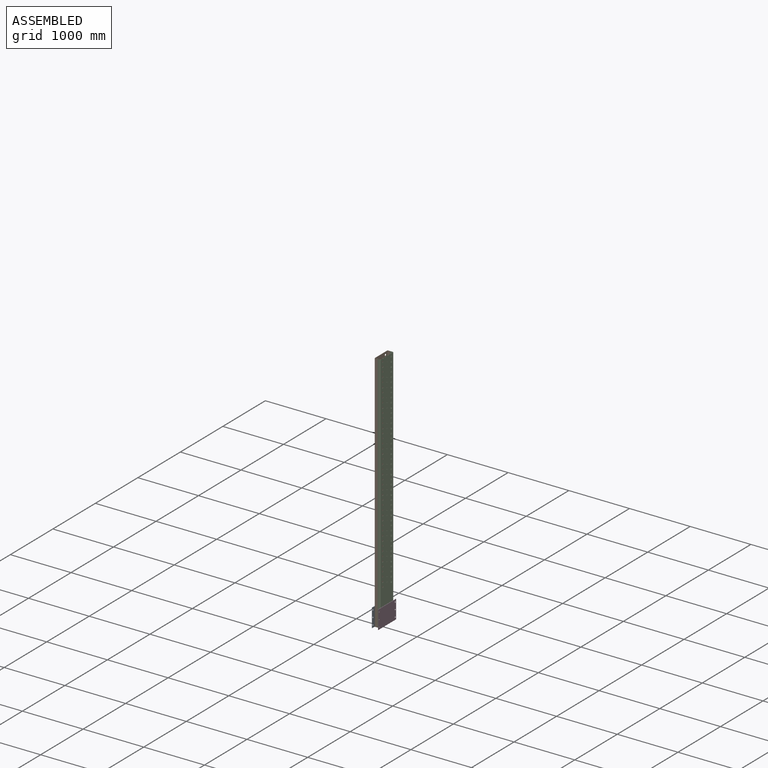
[diagram: assembled view]
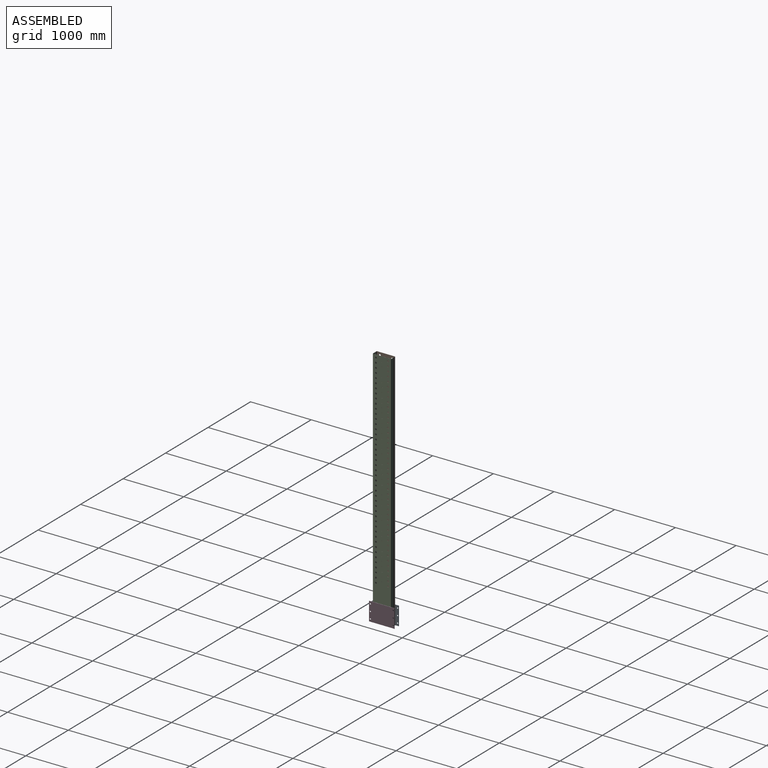
[diagram: assembled view, second angle]
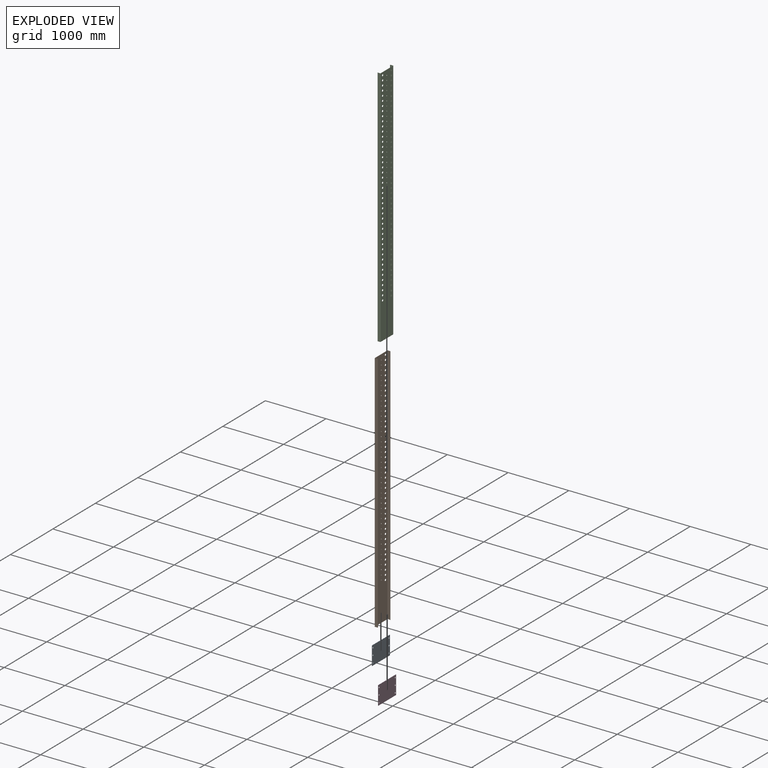
[diagram: exploded view]
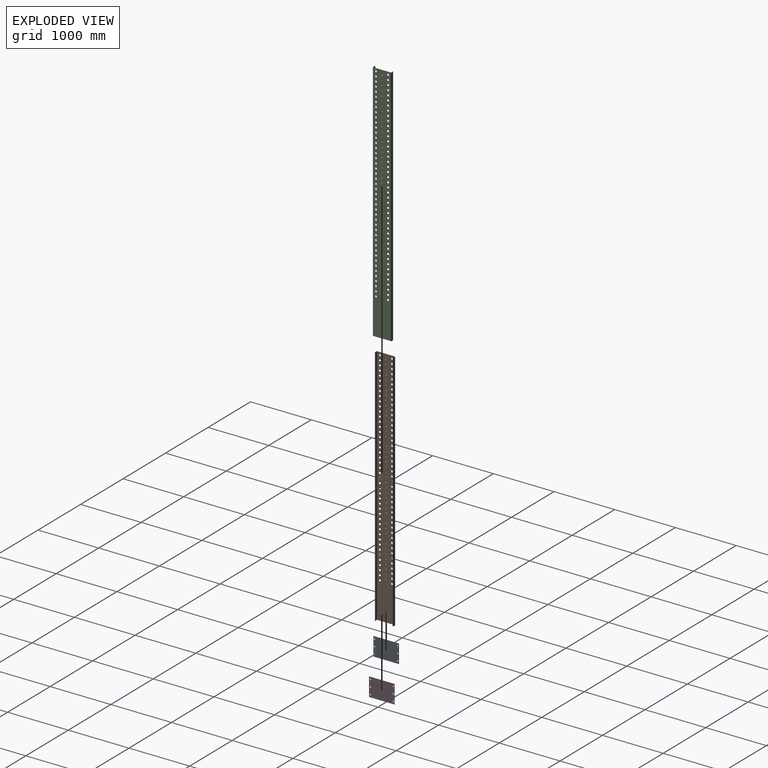
[diagram: exploded view, second angle]
ASSEMBLY  parts=4 mates=3
PART A: 12 faces, bbox 6x419x305 mm
  f0: plane 419x305mm, normal (-1,0,0), area 125716.8mm2, adj f1,f3,f4,f5,f6,f7,f8,f9
  f1: plane 305x6mm, normal (0,-1,0), area 1830mm2, adj f0,f2,f4,f5
  f2: plane 419x305mm, normal (1,0,0), area 125716.8mm2, adj f1,f3,f4,f5,f6,f7,f8,f9
  f3: plane 305x6mm, normal (0,1,0), area 1830mm2, adj f0,f2,f4,f5
  f4: plane 419x6mm, normal (0,0,1), area 2514mm2, adj f0,f1,f2,f3
  f5: plane 419x6mm, normal (0,0,-1), area 2514mm2, adj f0,f1,f2,f3
  f6: cylinder r=10.5mm len=21mm, axis (-1,0,0), area 395.8mm2, adj f0,f2
  f7: cylinder r=10.5mm len=21mm, axis (-1,0,0), area 395.8mm2, adj f0,f2
  f8: cylinder r=10.5mm len=21mm, axis (-1,0,0), area 395.8mm2, adj f0,f2
  f9: cylinder r=10.5mm len=21mm, axis (-1,0,0), area 395.8mm2, adj f0,f2
  f10: cylinder r=10.5mm len=21mm, axis (-1,0,0), area 395.8mm2, adj f0,f2
  f11: cylinder r=10.5mm len=21mm, axis (-1,0,0), area 395.8mm2, adj f0,f2
PART B: 156 faces, bbox 48x305x4000 mm
  f0: cylinder r=3mm len=4000mm, axis (0,0,-1), area 18849.6mm2, adj f1,f19,f20,f21
  f1: plane 4000x5mm, normal (-1,0,0), area 20000mm2, adj f0,f2,f20,f21
  f2: plane 4000x2mm, normal (0,-1,0), area 8000mm2, adj f1,f3,f20,f21
  f3: plane 4000x5mm, normal (1,0,0), area 20000mm2, adj f2,f4,f20,f21
  f4: cylinder r=5mm len=4000mm, axis (0,0,-1), area 31415.9mm2, adj f3,f5,f20,f21
  f5: plane 4000x38mm, normal (0,1,0), area 152000mm2, adj f4,f6,f20,f21
  f6: cylinder r=5mm len=4000mm, axis (0,0,-1), area 31415.9mm2, adj f5,f7,f20,f21
  f7: plane 4000x295mm, normal (-1,0,0), area 1112201.3mm2, adj f6,f8,f20,f21,f22,f23,f24,f25
  f8: cylinder r=5mm len=4000mm, axis (0,0,-1), area 31415.9mm2, adj f7,f9,f20,f21
  f9: plane 4000x38mm, normal (0,-1,0), area 152000mm2, adj f8,f10,f20,f21
  f10: cylinder r=5mm len=4000mm, axis (0,0,-1), area 31415.9mm2, adj f9,f11,f20,f21
  f11: plane 4000x5mm, normal (1,0,0), area 20000mm2, adj f10,f12,f20,f21
  f12: plane 4000x2mm, normal (0,1,0), area 8000mm2, adj f11,f13,f20,f21
  f13: plane 4000x5mm, normal (-1,0,0), area 20000mm2, adj f12,f14,f20,f21
  f14: cylinder r=3mm len=4000mm, axis (0,0,-1), area 18849.6mm2, adj f13,f15,f20,f21
  f15: plane 4000x38mm, normal (0,1,0), area 152000mm2, adj f14,f16,f20,f21
  f16: cylinder r=3mm len=4000mm, axis (0,0,-1), area 18849.6mm2, adj f15,f17,f20,f21
  f17: plane 4000x295mm, normal (1,0,0), area 1112201.3mm2, adj f16,f18,f20,f21,f22,f23,f24,f25
  f18: cylinder r=3mm len=4000mm, axis (0,0,-1), area 18849.6mm2, adj f17,f19,f20,f21
  f19: plane 4000x38mm, normal (0,-1,0), area 152000mm2, adj f0,f18,f20,f21
  f20: plane 305x48mm, normal (0,0,1), area 812.3mm2, adj f0,f1,f2,f3,f4,f5,f6,f7
  f21: plane 305x48mm, normal (0,0,-1), area 812.3mm2, adj f0,f1,f2,f3,f4,f5,f6,f7
  f22: cylinder r=15mm len=30mm, axis (-1,0,0), area 188.5mm2, adj f7,f17
  f23: cylinder r=5.5mm len=11mm, axis (-1,0,0), area 69.1mm2, adj f7,f17
  f24: cylinder r=5.5mm len=11mm, axis (-1,0,0), area 69.1mm2, adj f7,f17
  f25: cylinder r=5.5mm len=11mm, axis (-1,0,0), area 69.1mm2, adj f7,f17
  f26: cylinder r=5.5mm len=11mm, axis (-1,0,0), area 69.1mm2, adj f7,f17
  f27: cylinder r=5.5mm len=11mm, axis (-1,0,0), area 69.1mm2, adj f7,f17
  f28: cylinder r=15mm len=30mm, axis (-1,0,0), area 188.5mm2, adj f7,f17
  f29: cylinder r=5.5mm len=11mm, axis (-1,0,0), area 69.1mm2, adj f7,f17
  f30: cylinder r=15mm len=30mm, axis (-1,0,0), area 188.5mm2, adj f7,f17
  f31: cylinder r=15mm len=30mm, axis (-1,0,0), area 188.5mm2, adj f7,f17
  f32: cylinder r=15mm len=30mm, axis (-1,0,0), area 188.5mm2, adj f7,f17
  f33: cylinder r=15mm len=30mm, axis (-1,0,0), area 188.5mm2, adj f7,f17
  f34: cylinder r=15mm len=30mm, axis (-1,0,0), area 188.5mm2, adj f7,f17
  f35: cylinder r=15mm len=30mm, axis (-1,0,0), area 188.5mm2, adj f7,f17
  f36: cylinder r=15mm len=30mm, axis (-1,0,0), area 188.5mm2, adj f7,f17
  f37: cylinder r=15mm len=30mm, axis (-1,0,0), area 188.5mm2, adj f7,f17
  f38: cylinder r=15mm len=30mm, axis (-1,0,0), area 188.5mm2, adj f7,f17
  f39: cylinder r=15mm len=30mm, axis (-1,0,0), area 188.5mm2, adj f7,f17
  f40: cylinder r=15mm len=30mm, axis (-1,0,0), area 188.5mm2, adj f7,f17
  f41: cylinder r=15mm len=30mm, axis (-1,0,0), area 188.5mm2, adj f7,f17
  f42: cylinder r=15mm len=30mm, axis (-1,0,0), area 188.5mm2, adj f7,f17
  f43: cylinder r=15mm len=30mm, axis (-1,0,0), area 188.5mm2, adj f7,f17
  f44: cylinder r=15mm len=30mm, axis (-1,0,0), area 188.5mm2, adj f7,f17
  f45: cylinder r=15mm len=30mm, axis (-1,0,0), area 188.5mm2, adj f7,f17
  f46: cylinder r=15mm len=30mm, axis (-1,0,0), area 188.5mm2, adj f7,f17
  f47: cylinder r=15mm len=30mm, axis (-1,0,0), area 188.5mm2, adj f7,f17
  f48: cylinder r=15mm len=30mm, axis (-1,0,0), area 188.5mm2, adj f7,f17
  f49: cylinder r=15mm len=30mm, axis (-1,0,0), area 188.5mm2, adj f7,f17
  f50: cylinder r=15mm len=30mm, axis (-1,0,0), area 188.5mm2, adj f7,f17
  f51: cylinder r=15mm len=30mm, axis (-1,0,0), area 188.5mm2, adj f7,f17
  f52: cylinder r=15mm len=30mm, axis (-1,0,0), area 188.5mm2, adj f7,f17
  f53: cylinder r=15mm len=30mm, axis (-1,0,0), area 188.5mm2, adj f7,f17
  f54: cylinder r=15mm len=30mm, axis (-1,0,0), area 188.5mm2, adj f7,f17
  f55: cylinder r=15mm len=30mm, axis (-1,0,0), area 188.5mm2, adj f7,f17
  f56: cylinder r=15mm len=30mm, axis (-1,0,0), area 188.5mm2, adj f7,f17
  f57: cylinder r=15mm len=30mm, axis (-1,0,0), area 188.5mm2, adj f7,f17
  f58: cylinder r=15mm len=30mm, axis (-1,0,0), area 188.5mm2, adj f7,f17
  f59: cylinder r=15mm len=30mm, axis (-1,0,0), area 188.5mm2, adj f7,f17
  f60: cylinder r=15mm len=30mm, axis (-1,0,0), area 188.5mm2, adj f7,f17
  f61: cylinder r=15mm len=30mm, axis (-1,0,0), area 188.5mm2, adj f7,f17
  f62: cylinder r=15mm len=30mm, axis (-1,0,0), area 188.5mm2, adj f7,f17
  f63: cylinder r=15mm len=30mm, axis (-1,0,0), area 188.5mm2, adj f7,f17
  f64: cylinder r=15mm len=30mm, axis (-1,0,0), area 188.5mm2, adj f7,f17
  f65: cylinder r=15mm len=30mm, axis (-1,0,0), area 188.5mm2, adj f7,f17
  f66: cylinder r=15mm len=30mm, axis (-1,0,0), area 188.5mm2, adj f7,f17
  f67: cylinder r=15mm len=30mm, axis (-1,0,0), area 188.5mm2, adj f7,f17
  f68: cylinder r=15mm len=30mm, axis (-1,0,0), area 188.5mm2, adj f7,f17
  f69: cylinder r=15mm len=30mm, axis (-1,0,0), area 188.5mm2, adj f7,f17
  f70: cylinder r=15mm len=30mm, axis (-1,0,0), area 188.5mm2, adj f7,f17
  f71: cylinder r=15mm len=30mm, axis (-1,0,0), area 188.5mm2, adj f7,f17
  f72: cylinder r=15mm len=30mm, axis (-1,0,0), area 188.5mm2, adj f7,f17
  f73: cylinder r=15mm len=30mm, axis (-1,0,0), area 188.5mm2, adj f7,f17
  f74: cylinder r=15mm len=30mm, axis (-1,0,0), area 188.5mm2, adj f7,f17
  f75: cylinder r=15mm len=30mm, axis (-1,0,0), area 188.5mm2, adj f7,f17
  f76: cylinder r=15mm len=30mm, axis (-1,0,0), area 188.5mm2, adj f7,f17
  f77: cylinder r=15mm len=30mm, axis (-1,0,0), area 188.5mm2, adj f7,f17
  f78: cylinder r=15mm len=30mm, axis (-1,0,0), area 188.5mm2, adj f7,f17
  f79: cylinder r=15mm len=30mm, axis (-1,0,0), area 188.5mm2, adj f7,f17
  f80: cylinder r=15mm len=30mm, axis (-1,0,0), area 188.5mm2, adj f7,f17
  f81: cylinder r=15mm len=30mm, axis (-1,0,0), area 188.5mm2, adj f7,f17
  f82: cylinder r=15mm len=30mm, axis (-1,0,0), area 188.5mm2, adj f7,f17
  f83: cylinder r=15mm len=30mm, axis (-1,0,0), area 188.5mm2, adj f7,f17
  f84: cylinder r=15mm len=30mm, axis (-1,0,0), area 188.5mm2, adj f7,f17
  f85: cylinder r=15mm len=30mm, axis (-1,0,0), area 188.5mm2, adj f7,f17
  f86: cylinder r=15mm len=30mm, axis (-1,0,0), area 188.5mm2, adj f7,f17
  f87: cylinder r=15mm len=30mm, axis (-1,0,0), area 188.5mm2, adj f7,f17
  f88: cylinder r=15mm len=30mm, axis (-1,0,0), area 188.5mm2, adj f7,f17
  f89: cylinder r=15mm len=30mm, axis (-1,0,0), area 188.5mm2, adj f7,f17
  f90: cylinder r=15mm len=30mm, axis (-1,0,0), area 188.5mm2, adj f7,f17
  f91: cylinder r=15mm len=30mm, axis (-1,0,0), area 188.5mm2, adj f7,f17
  f92: cylinder r=5.5mm len=11mm, axis (-1,0,0), area 69.1mm2, adj f7,f17
  f93: cylinder r=5.5mm len=11mm, axis (-1,0,0), area 69.1mm2, adj f7,f17
  f94: cylinder r=5.5mm len=11mm, axis (-1,0,0), area 69.1mm2, adj f7,f17
  f95: cylinder r=5.5mm len=11mm, axis (-1,0,0), area 69.1mm2, adj f7,f17
  f96: cylinder r=5.5mm len=11mm, axis (-1,0,0), area 69.1mm2, adj f7,f17
  f97: cylinder r=5.5mm len=11mm, axis (-1,0,0), area 69.1mm2, adj f7,f17
  f98: cylinder r=5.5mm len=11mm, axis (-1,0,0), area 69.1mm2, adj f7,f17
  f99: cylinder r=5.5mm len=11mm, axis (-1,0,0), area 69.1mm2, adj f7,f17
  f100: cylinder r=5.5mm len=11mm, axis (-1,0,0), area 69.1mm2, adj f7,f17
  f101: cylinder r=5.5mm len=11mm, axis (-1,0,0), area 69.1mm2, adj f7,f17
  f102: cylinder r=5.5mm len=11mm, axis (-1,0,0), area 69.1mm2, adj f7,f17
  f103: cylinder r=5.5mm len=11mm, axis (-1,0,0), area 69.1mm2, adj f7,f17
  f104: cylinder r=5.5mm len=11mm, axis (-1,0,0), area 69.1mm2, adj f7,f17
  f105: cylinder r=5.5mm len=11mm, axis (-1,0,0), area 69.1mm2, adj f7,f17
  f106: cylinder r=5.5mm len=11mm, axis (-1,0,0), area 69.1mm2, adj f7,f17
  f107: cylinder r=5.5mm len=11mm, axis (-1,0,0), area 69.1mm2, adj f7,f17
  f108: cylinder r=5.5mm len=11mm, axis (-1,0,0), area 69.1mm2, adj f7,f17
  f109: cylinder r=5.5mm len=11mm, axis (-1,0,0), area 69.1mm2, adj f7,f17
  f110: cylinder r=5.5mm len=11mm, axis (-1,0,0), area 69.1mm2, adj f7,f17
  f111: cylinder r=5.5mm len=11mm, axis (-1,0,0), area 69.1mm2, adj f7,f17
  f112: cylinder r=5.5mm len=11mm, axis (-1,0,0), area 69.1mm2, adj f7,f17
  f113: cylinder r=5.5mm len=11mm, axis (-1,0,0), area 69.1mm2, adj f7,f17
  f114: cylinder r=5.5mm len=11mm, axis (-1,0,0), area 69.1mm2, adj f7,f17
  f115: cylinder r=5.5mm len=11mm, axis (-1,0,0), area 69.1mm2, adj f7,f17
  f116: cylinder r=5.5mm len=11mm, axis (-1,0,0), area 69.1mm2, adj f7,f17
  f117: cylinder r=5.5mm len=11mm, axis (-1,0,0), area 69.1mm2, adj f7,f17
  f118: cylinder r=5.5mm len=11mm, axis (-1,0,0), area 69.1mm2, adj f7,f17
  f119: cylinder r=5.5mm len=11mm, axis (-1,0,0), area 69.1mm2, adj f7,f17
  f120: cylinder r=5.5mm len=11mm, axis (-1,0,0), area 69.1mm2, adj f7,f17
  f121: cylinder r=5.5mm len=11mm, axis (-1,0,0), area 69.1mm2, adj f7,f17
  f122: cylinder r=5.5mm len=11mm, axis (-1,0,0), area 69.1mm2, adj f7,f17
  f123: cylinder r=5.5mm len=11mm, axis (-1,0,0), area 69.1mm2, adj f7,f17
  f124: cylinder r=15mm len=30mm, axis (-1,0,0), area 188.5mm2, adj f7,f17
  f125: cylinder r=15mm len=30mm, axis (-1,0,0), area 188.5mm2, adj f7,f17
  f126: cylinder r=15mm len=30mm, axis (-1,0,0), area 188.5mm2, adj f7,f17
  f127: cylinder r=15mm len=30mm, axis (-1,0,0), area 188.5mm2, adj f7,f17
  f128: cylinder r=15mm len=30mm, axis (-1,0,0), area 188.5mm2, adj f7,f17
  f129: cylinder r=15mm len=30mm, axis (-1,0,0), area 188.5mm2, adj f7,f17
  f130: cylinder r=15mm len=30mm, axis (-1,0,0), area 188.5mm2, adj f7,f17
  f131: cylinder r=15mm len=30mm, axis (-1,0,0), area 188.5mm2, adj f7,f17
  f132: cylinder r=15mm len=30mm, axis (-1,0,0), area 188.5mm2, adj f7,f17
  f133: cylinder r=15mm len=30mm, axis (-1,0,0), area 188.5mm2, adj f7,f17
  f134: cylinder r=15mm len=30mm, axis (-1,0,0), area 188.5mm2, adj f7,f17
  f135: cylinder r=15mm len=30mm, axis (-1,0,0), area 188.5mm2, adj f7,f17
  f136: cylinder r=15mm len=30mm, axis (-1,0,0), area 188.5mm2, adj f7,f17
  f137: cylinder r=15mm len=30mm, axis (-1,0,0), area 188.5mm2, adj f7,f17
  f138: cylinder r=15mm len=30mm, axis (-1,0,0), area 188.5mm2, adj f7,f17
  f139: cylinder r=15mm len=30mm, axis (-1,0,0), area 188.5mm2, adj f7,f17
  f140: cylinder r=15mm len=30mm, axis (-1,0,0), area 188.5mm2, adj f7,f17
  f141: cylinder r=15mm len=30mm, axis (-1,0,0), area 188.5mm2, adj f7,f17
  f142: cylinder r=5.5mm len=11mm, axis (-1,0,0), area 69.1mm2, adj f7,f17
  f143: cylinder r=5.5mm len=11mm, axis (-1,0,0), area 69.1mm2, adj f7,f17
  f144: cylinder r=5.5mm len=11mm, axis (-1,0,0), area 69.1mm2, adj f7,f17
  f145: cylinder r=5.5mm len=11mm, axis (-1,0,0), area 69.1mm2, adj f7,f17
  f146: cylinder r=5.5mm len=11mm, axis (-1,0,0), area 69.1mm2, adj f7,f17
  f147: cylinder r=5.5mm len=11mm, axis (-1,0,0), area 69.1mm2, adj f7,f17
  f148: cylinder r=15mm len=30mm, axis (-1,0,0), area 188.5mm2, adj f7,f17
  f149: cylinder r=15mm len=30mm, axis (-1,0,0), area 188.5mm2, adj f7,f17
  f150: cylinder r=15mm len=30mm, axis (-1,0,0), area 188.5mm2, adj f7,f17
  f151: cylinder r=15mm len=30mm, axis (-1,0,0), area 188.5mm2, adj f7,f17
  f152: cylinder r=15mm len=30mm, axis (-1,0,0), area 188.5mm2, adj f7,f17
  f153: cylinder r=15mm len=30mm, axis (-1,0,0), area 188.5mm2, adj f7,f17
  f154: cylinder r=15mm len=30mm, axis (-1,0,0), area 188.5mm2, adj f7,f17
  f155: cylinder r=15mm len=30mm, axis (-1,0,0), area 188.5mm2, adj f7,f17
PART C: same geometry as B
PART D: same geometry as A
PLACE A t=(-2197.4,-208.52,-124.53)mm
PLACE B t=(-2191.4,-151.52,-124.53)mm
PLACE C rot(axis=(0,0,1),180deg) t=(-2095.4,153.48,-124.53)mm
PLACE D rot(axis=(0,0,1),0deg) t=(-2095.4,-208.52,-124.53)mm
MATE fastened C.f20 <-> B.f20  axis (0,0,1) through (-2143.4,145.98,3875.47)mm
MATE fastened D.f5 <-> C.f21  axis (0,0,-1) through (-2095.4,0.98,-124.53)mm
MATE fastened A.f5 <-> B.f21  axis (0,0,-1) through (-2191.4,0.98,-124.53)mm
